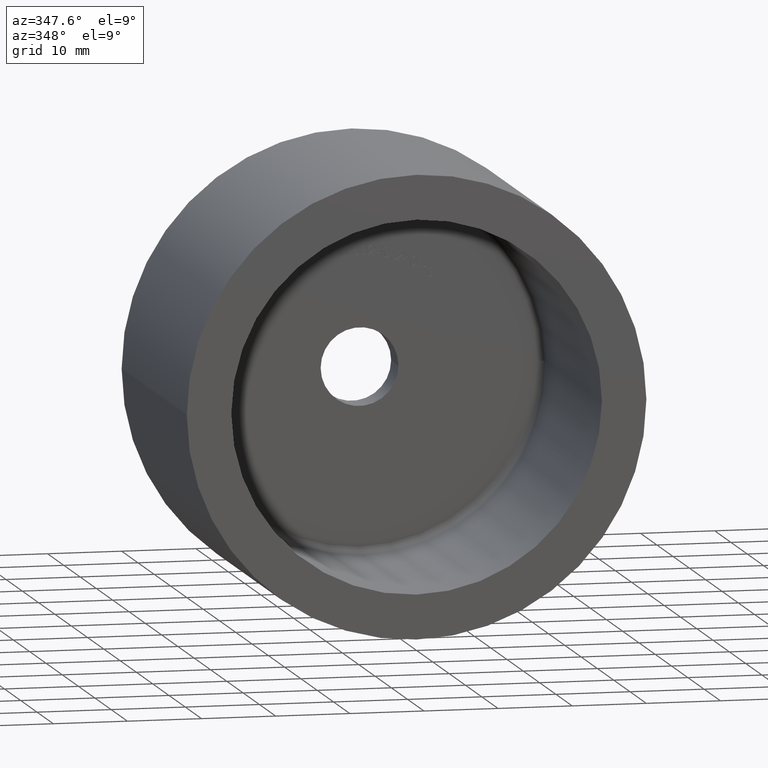
[diagram: clean part render]
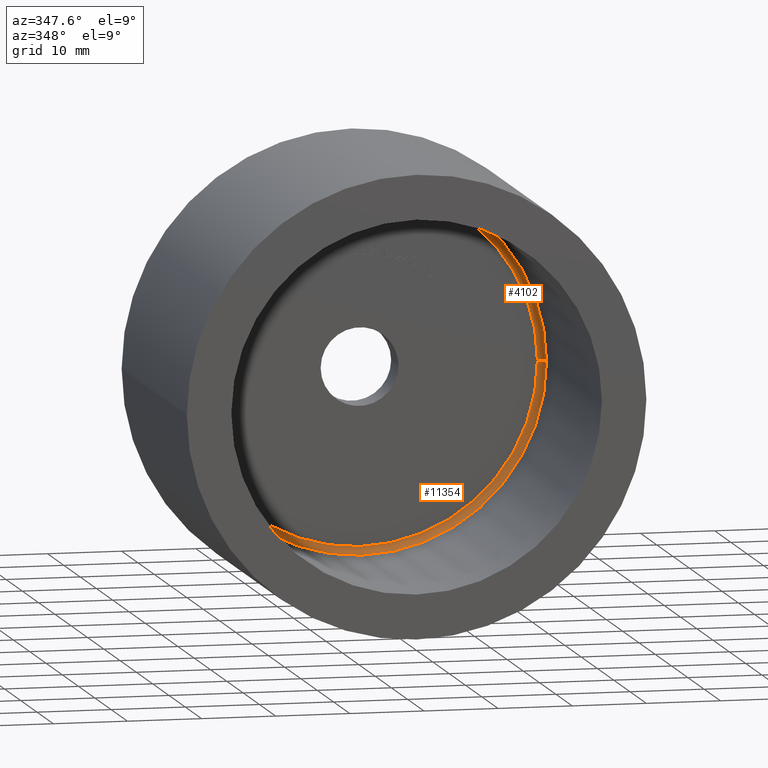
[diagram: same view with one multi-face feature highlighted, each face labeled with its STEP entity id]
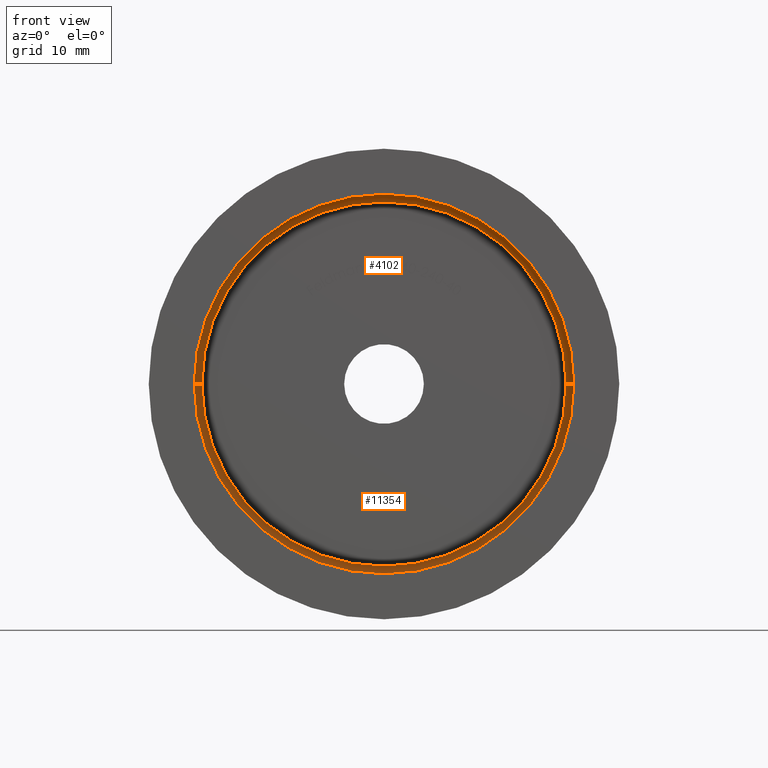
[diagram: same view with one multi-face feature highlighted, each face labeled with its STEP entity id]
A machine part, auxiliary view. The highlighted faces form ONE feature: a constant-radius fillet chain: 2 tangent blend faces with common blend radius 1 mm. The faces share edges in the B-rep.
A second angle (front view) of the same feature is appended — it is thin or edge-on in the first view.
Their STEP definitions:
[1] entity #4102 (Torus):
#41 = DIRECTION ( 'NONE',  ( -1.224646799147353207E-16, -1.062211776130383646E-32, 1.000000000000000000 ) ) ;
#507 = CIRCLE ( 'NONE', #4801, 1.000000000000000888 ) ;
#1059 = ORIENTED_EDGE ( 'NONE', *, *, #14239, .F. ) ;
#1704 = VERTEX_POINT ( 'NONE', #7317 ) ;
#1834 = ORIENTED_EDGE ( 'NONE', *, *, #3123, .F. ) ;
#2052 = CARTESIAN_POINT ( 'NONE',  ( 3.061616997868382254E-15, 34.00000000000000000, 25.00000000000000000 ) ) ;
#2287 = VERTEX_POINT ( 'NONE', #3869 ) ;
#2506 = AXIS2_PLACEMENT_3D ( 'NONE', #8790, #3268, #11082 ) ;
#2609 = CARTESIAN_POINT ( 'NONE',  ( -24.00000000000000000, 34.00000000000000000, 0.000000000000000000 ) ) ;
#3066 = DIRECTION ( 'NONE',  ( -1.000000000000000000, 0.000000000000000000, 0.000000000000000000 ) ) ;
#3072 = EDGE_CURVE ( 'NONE', #1704, #6798, #8367, .T. ) ;
#3123 = EDGE_CURVE ( 'NONE', #6798, #2287, #12567, .T. ) ;
#3268 = DIRECTION ( 'NONE',  ( -8.673617379884035472E-17, 1.000000000000000000, -0.000000000000000000 ) ) ;
#3403 = CARTESIAN_POINT ( 'NONE',  ( 24.00000000000000000, 35.00000000000000000, 3.000384657911015469E-15 ) ) ;
#3595 = TOROIDAL_SURFACE ( 'NONE', #5155, 24.00000000000000000, 1.000000000000000000 ) ;
#3869 = CARTESIAN_POINT ( 'NONE',  ( 25.00000000000000000, 34.00000000000000000, 3.061616997868383043E-15 ) ) ;
#4102 = ADVANCED_FACE ( 'NONE', ( #4282 ), #3595, .F. ) ;
#4282 = FACE_OUTER_BOUND ( 'NONE', #13012, .T. ) ;
#4522 = DIRECTION ( 'NONE',  ( 1.000000000000000000, 0.000000000000000000, 1.224646799147353454E-16 ) ) ;
#4801 = AXIS2_PLACEMENT_3D ( 'NONE', #2609, #12669, #4912 ) ;
#4912 = DIRECTION ( 'NONE',  ( -1.000000000000000000, 0.000000000000000000, 0.000000000000000000 ) ) ;
#5095 = ORIENTED_EDGE ( 'NONE', *, *, #3072, .F. ) ;
#5155 = AXIS2_PLACEMENT_3D ( 'NONE', #7916, #5940, #9162 ) ;
#5392 = CIRCLE ( 'NONE', #6198, 24.00000000000000000 ) ;
#5940 = DIRECTION ( 'NONE',  ( -8.673617379884035472E-17, 1.000000000000000000, -0.000000000000000000 ) ) ;
#6198 = AXIS2_PLACEMENT_3D ( 'NONE', #10558, #13858, #7158 ) ;
#6306 = DIRECTION ( 'NONE',  ( -8.673617379884035472E-17, 1.000000000000000000, -0.000000000000000000 ) ) ;
#6798 = VERTEX_POINT ( 'NONE', #2052 ) ;
#6864 = CARTESIAN_POINT ( 'NONE',  ( -24.00000000000000000, 35.00000000000000000, 0.000000000000000000 ) ) ;
#7158 = DIRECTION ( 'NONE',  ( -1.000000000000000000, 0.000000000000000000, 0.000000000000000000 ) ) ;
#7317 = CARTESIAN_POINT ( 'NONE',  ( -25.00000000000000000, 34.00000000000000000, 0.000000000000000000 ) ) ;
#7356 = ORIENTED_EDGE ( 'NONE', *, *, #10379, .T. ) ;
#7916 = CARTESIAN_POINT ( 'NONE',  ( 0.000000000000000000, 34.00000000000000000, 0.000000000000000000 ) ) ;
#8367 = CIRCLE ( 'NONE', #13052, 25.00000000000000000 ) ;
#8597 = CARTESIAN_POINT ( 'NONE',  ( 0.000000000000000000, 34.00000000000000000, 0.000000000000000000 ) ) ;
#8790 = CARTESIAN_POINT ( 'NONE',  ( 0.000000000000000000, 34.00000000000000000, 0.000000000000000000 ) ) ;
#9115 = VERTEX_POINT ( 'NONE', #3403 ) ;
#9162 = DIRECTION ( 'NONE',  ( -1.000000000000000000, -8.673617379884035472E-17, 0.000000000000000000 ) ) ;
#9270 = ORIENTED_EDGE ( 'NONE', *, *, #12053, .F. ) ;
#9329 = AXIS2_PLACEMENT_3D ( 'NONE', #11154, #41, #4522 ) ;
#10379 = EDGE_CURVE ( 'NONE', #1704, #11919, #507, .T. ) ;
#10464 = CIRCLE ( 'NONE', #9329, 1.000000000000000888 ) ;
#10558 = CARTESIAN_POINT ( 'NONE',  ( -8.673617379884066287E-17, 35.00000000000000000, 0.000000000000000000 ) ) ;
#11082 = DIRECTION ( 'NONE',  ( -1.000000000000000000, 0.000000000000000000, 0.000000000000000000 ) ) ;
#11154 = CARTESIAN_POINT ( 'NONE',  ( 24.00000000000000000, 34.00000000000000000, 2.939152317953647894E-15 ) ) ;
#11919 = VERTEX_POINT ( 'NONE', #6864 ) ;
#12053 = EDGE_CURVE ( 'NONE', #9115, #11919, #5392, .T. ) ;
#12567 = CIRCLE ( 'NONE', #2506, 25.00000000000000000 ) ;
#12669 = DIRECTION ( 'NONE',  ( 0.000000000000000000, -0.000000000000000000, -1.000000000000000000 ) ) ;
#13012 = EDGE_LOOP ( 'NONE', ( #1059, #1834, #5095, #7356, #9270 ) ) ;
#13052 = AXIS2_PLACEMENT_3D ( 'NONE', #8597, #6306, #3066 ) ;
#13858 = DIRECTION ( 'NONE',  ( 8.673617379884035472E-17, -1.000000000000000000, 0.000000000000000000 ) ) ;
#14239 = EDGE_CURVE ( 'NONE', #2287, #9115, #10464, .T. ) ;
[2] entity #11354 (Torus):
#41 = DIRECTION ( 'NONE',  ( -1.224646799147353207E-16, -1.062211776130383646E-32, 1.000000000000000000 ) ) ;
#424 = AXIS2_PLACEMENT_3D ( 'NONE', #6503, #6111, #512 ) ;
#507 = CIRCLE ( 'NONE', #4801, 1.000000000000000888 ) ;
#512 = DIRECTION ( 'NONE',  ( -1.000000000000000000, 0.000000000000000000, 0.000000000000000000 ) ) ;
#836 = CARTESIAN_POINT ( 'NONE',  ( 0.000000000000000000, 34.00000000000000000, 0.000000000000000000 ) ) ;
#1332 = DIRECTION ( 'NONE',  ( -8.673617379884035472E-17, 1.000000000000000000, -0.000000000000000000 ) ) ;
#1704 = VERTEX_POINT ( 'NONE', #7317 ) ;
#2004 = ORIENTED_EDGE ( 'NONE', *, *, #2389, .F. ) ;
#2285 = EDGE_CURVE ( 'NONE', #2287, #7144, #5537, .T. ) ;
#2287 = VERTEX_POINT ( 'NONE', #3869 ) ;
#2389 = EDGE_CURVE ( 'NONE', #7144, #1704, #5368, .T. ) ;
#2544 = AXIS2_PLACEMENT_3D ( 'NONE', #9122, #1332, #3706 ) ;
#2609 = CARTESIAN_POINT ( 'NONE',  ( -24.00000000000000000, 34.00000000000000000, 0.000000000000000000 ) ) ;
#3403 = CARTESIAN_POINT ( 'NONE',  ( 24.00000000000000000, 35.00000000000000000, 3.000384657911015469E-15 ) ) ;
#3706 = DIRECTION ( 'NONE',  ( -1.000000000000000000, -8.673617379884035472E-17, 0.000000000000000000 ) ) ;
#3869 = CARTESIAN_POINT ( 'NONE',  ( 25.00000000000000000, 34.00000000000000000, 3.061616997868383043E-15 ) ) ;
#4522 = DIRECTION ( 'NONE',  ( 1.000000000000000000, 0.000000000000000000, 1.224646799147353454E-16 ) ) ;
#4571 = DIRECTION ( 'NONE',  ( 8.673617379884035472E-17, -1.000000000000000000, 0.000000000000000000 ) ) ;
#4801 = AXIS2_PLACEMENT_3D ( 'NONE', #2609, #12669, #4912 ) ;
#4912 = DIRECTION ( 'NONE',  ( -1.000000000000000000, 0.000000000000000000, 0.000000000000000000 ) ) ;
#4956 = AXIS2_PLACEMENT_3D ( 'NONE', #836, #8729, #8582 ) ;
#5368 = CIRCLE ( 'NONE', #4956, 25.00000000000000000 ) ;
#5537 = CIRCLE ( 'NONE', #424, 25.00000000000000000 ) ;
#5850 = EDGE_CURVE ( 'NONE', #11919, #9115, #9197, .T. ) ;
#5882 = AXIS2_PLACEMENT_3D ( 'NONE', #9969, #4571, #13471 ) ;
#6111 = DIRECTION ( 'NONE',  ( -8.673617379884035472E-17, 1.000000000000000000, -0.000000000000000000 ) ) ;
#6277 = FACE_OUTER_BOUND ( 'NONE', #7174, .T. ) ;
#6503 = CARTESIAN_POINT ( 'NONE',  ( 0.000000000000000000, 34.00000000000000000, 0.000000000000000000 ) ) ;
#6567 = ORIENTED_EDGE ( 'NONE', *, *, #2285, .F. ) ;
#6864 = CARTESIAN_POINT ( 'NONE',  ( -24.00000000000000000, 35.00000000000000000, 0.000000000000000000 ) ) ;
#7144 = VERTEX_POINT ( 'NONE', #11600 ) ;
#7174 = EDGE_LOOP ( 'NONE', ( #6567, #13697, #9454, #10357, #2004 ) ) ;
#7317 = CARTESIAN_POINT ( 'NONE',  ( -25.00000000000000000, 34.00000000000000000, 0.000000000000000000 ) ) ;
#8582 = DIRECTION ( 'NONE',  ( -1.000000000000000000, 0.000000000000000000, 0.000000000000000000 ) ) ;
#8729 = DIRECTION ( 'NONE',  ( -8.673617379884035472E-17, 1.000000000000000000, -0.000000000000000000 ) ) ;
#9115 = VERTEX_POINT ( 'NONE', #3403 ) ;
#9122 = CARTESIAN_POINT ( 'NONE',  ( 0.000000000000000000, 34.00000000000000000, 0.000000000000000000 ) ) ;
#9197 = CIRCLE ( 'NONE', #5882, 24.00000000000000000 ) ;
#9288 = TOROIDAL_SURFACE ( 'NONE', #2544, 24.00000000000000000, 1.000000000000000000 ) ;
#9329 = AXIS2_PLACEMENT_3D ( 'NONE', #11154, #41, #4522 ) ;
#9454 = ORIENTED_EDGE ( 'NONE', *, *, #5850, .F. ) ;
#9969 = CARTESIAN_POINT ( 'NONE',  ( -8.673617379884066287E-17, 35.00000000000000000, 0.000000000000000000 ) ) ;
#10357 = ORIENTED_EDGE ( 'NONE', *, *, #10379, .F. ) ;
#10379 = EDGE_CURVE ( 'NONE', #1704, #11919, #507, .T. ) ;
#10464 = CIRCLE ( 'NONE', #9329, 1.000000000000000888 ) ;
#11154 = CARTESIAN_POINT ( 'NONE',  ( 24.00000000000000000, 34.00000000000000000, 2.939152317953647894E-15 ) ) ;
#11354 = ADVANCED_FACE ( 'NONE', ( #6277 ), #9288, .F. ) ;
#11600 = CARTESIAN_POINT ( 'NONE',  ( 0.000000000000000000, 34.00000000000000000, -25.00000000000000000 ) ) ;
#11919 = VERTEX_POINT ( 'NONE', #6864 ) ;
#12669 = DIRECTION ( 'NONE',  ( 0.000000000000000000, -0.000000000000000000, -1.000000000000000000 ) ) ;
#13471 = DIRECTION ( 'NONE',  ( -1.000000000000000000, 0.000000000000000000, 0.000000000000000000 ) ) ;
#13697 = ORIENTED_EDGE ( 'NONE', *, *, #14239, .T. ) ;
#14239 = EDGE_CURVE ( 'NONE', #2287, #9115, #10464, .T. ) ;